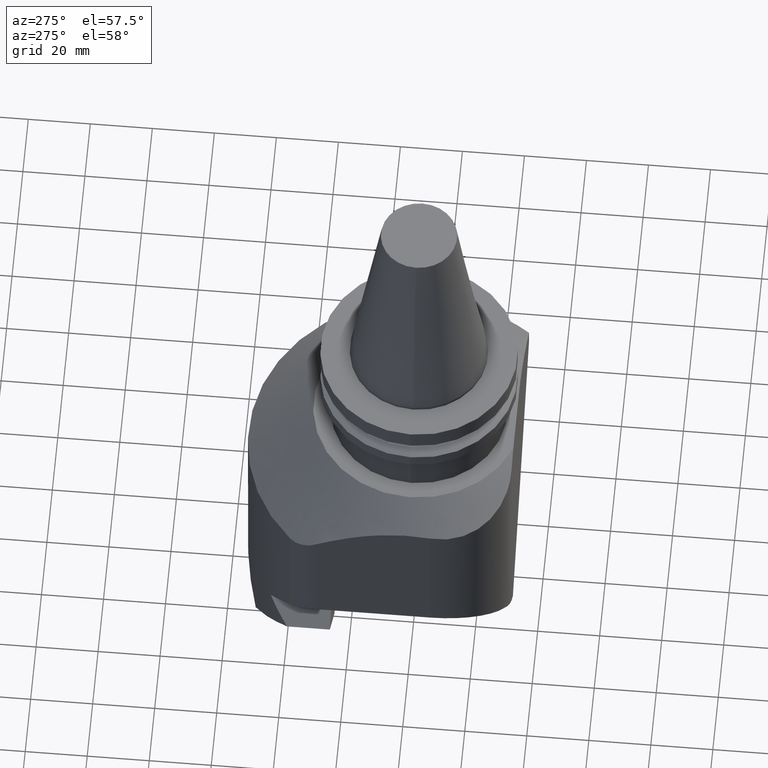
[diagram: clean part render]
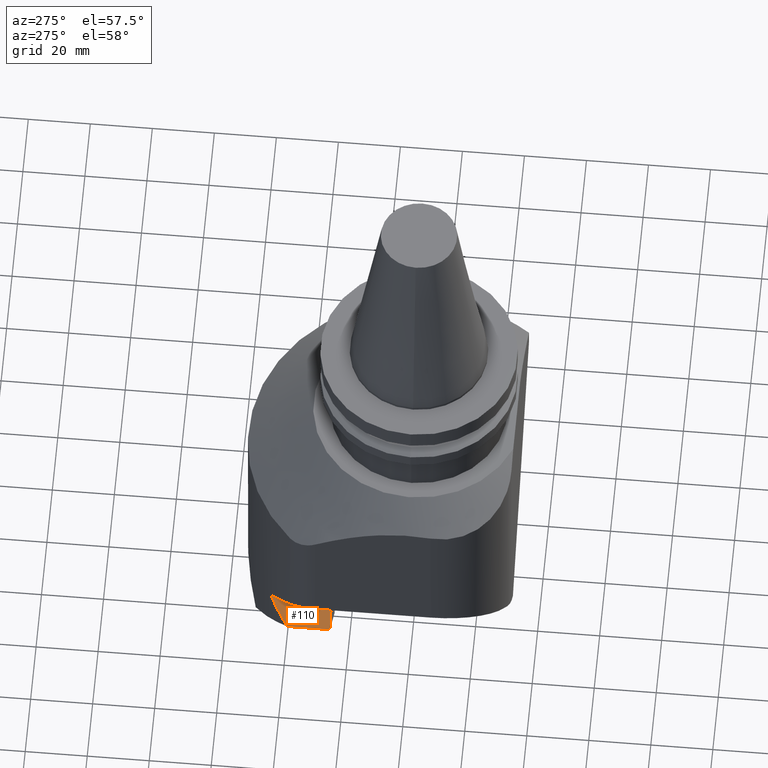
[diagram: same view with one face highlighted and labeled with its STEP entity id]
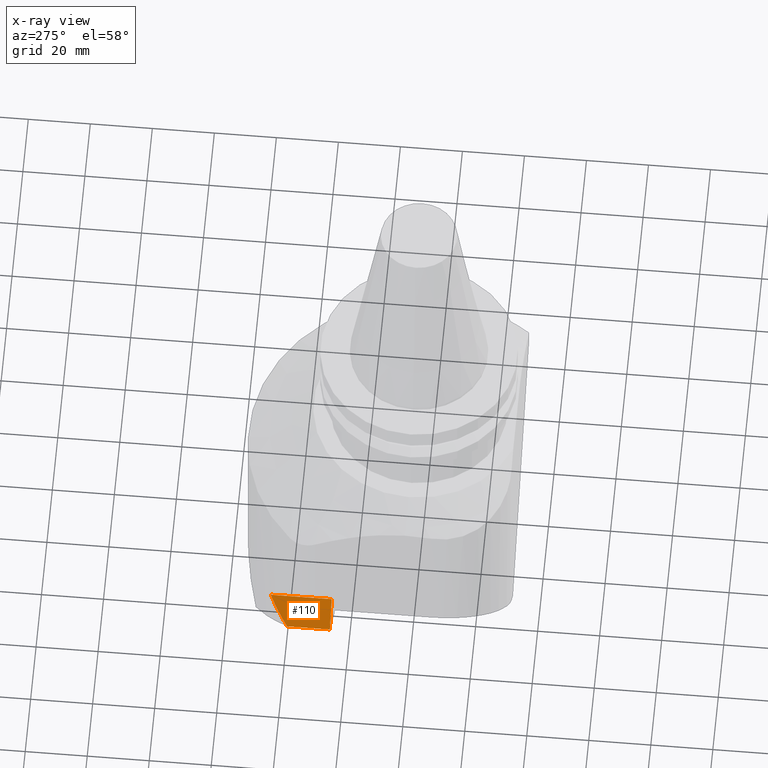
[diagram: x-ray of the same camera — body ghosted, the highlighted face saturated]
A machine part, auxiliary view. The second image highlights one B-rep face of the part: STEP entity #110.
The next image is the same camera in x-ray: the body ghosted, the highlighted face saturated — about 0% of this face is hidden behind the body in this view.
In plain terms, the highlighted planar face has unit normal (0.7071, -0, -0.7071).
Its self-contained STEP definition (entity closure, byte-faithful):
#110=ADVANCED_FACE('Unnamed[1]',(#326),#327,.F.);
#168=EDGE_CURVE('Unnamed[1]',#417,#418,#419,.T.);
#229=EDGE_CURVE('Unnamed[1]',#384,#417,#502,.T.);
#280=EDGE_CURVE('Unnamed[1]',#384,#358,#569,.T.);
#285=EDGE_CURVE('Unnamed[1]',#358,#418,#575,.T.);
#326=FACE_OUTER_BOUND('',#616,.T.);
#327=PLANE('',#617);
#358=VERTEX_POINT('',#686);
#384=VERTEX_POINT('',#732);
#417=VERTEX_POINT('',#787);
#418=VERTEX_POINT('',#788);
#419=LINE('',#789,#790);
#502=ELLIPSE('',#915,77.7817459305204,55.0);
#569=LINE('',#1020,#1021);
#575=LINE('',#1029,#1030);
#616=EDGE_LOOP('',(#1090,#1091,#1092,#1093));
#617=AXIS2_PLACEMENT_3D('',#1094,#1095,#1096);
#686=CARTESIAN_POINT('',(-38.6069588654316,25.3999999999998,-110.393041162342));
#732=CARTESIAN_POINT('',(-38.6069588654316,39.1727293810735,-110.393041162342));
#787=CARTESIAN_POINT('',(-31.535891039679,45.0609318182997,-103.321973336589));
#788=CARTESIAN_POINT('',(-31.535891039679,25.3999999999999,-103.321973336589));
#789=CARTESIAN_POINT('',(-31.535891039679,-5.3359699341173E-016,-103.321973336589));
#790=VECTOR('',#1189,1.0);
#915=AXIS2_PLACEMENT_3D('',#1288,#1289,#1290);
#1020=CARTESIAN_POINT('',(-38.6069588654316,3.32359064524448E-016,-110.393041162342));
#1021=VECTOR('',#1363,1.0);
#1029=CARTESIAN_POINT('',(-28.1069588550163,25.3999999999999,-99.8930411519265));
#1030=VECTOR('',#1371,1.0);
#1090=ORIENTED_EDGE('',*,*,#285,.T.);
#1091=ORIENTED_EDGE('',*,*,#168,.F.);
#1092=ORIENTED_EDGE('',*,*,#229,.F.);
#1093=ORIENTED_EDGE('',*,*,#280,.T.);
#1094=CARTESIAN_POINT('',(-35.0714249525553,-1.00618964443641E-016,-106.857507249466));
#1095=DIRECTION('',(0.707106781186552,-1.73191211247099E-016,-0.707106781186544));
#1096=DIRECTION('',(0.707106781186544,-8.65956056235484E-017,0.707106781186552));
#1189=DIRECTION('',(-1.83697019872103E-016,-1.0,6.12323399573677E-017));
#1288=CARTESIAN_POINT('',(5.85375122799753E-013,-4.39562979541203E-015,-71.7860822969094));
#1289=DIRECTION('',(0.707106781186552,-1.73191211247099E-016,-0.707106781186543));
#1290=DIRECTION('',(-0.707106781186544,8.65956056235483E-017,-0.707106781186552));
#1363=DIRECTION('',(-1.83697019872103E-016,-1.0,6.12323399573677E-017));
#1371=DIRECTION('',(0.707106781186544,4.0582370196437E-015,0.707106781186552));